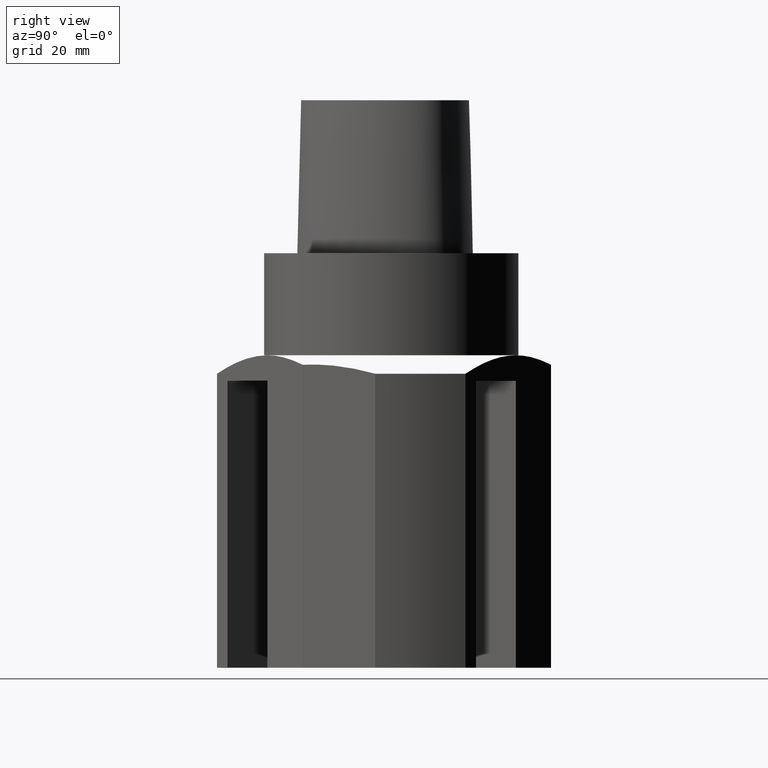
[diagram: clean part render]
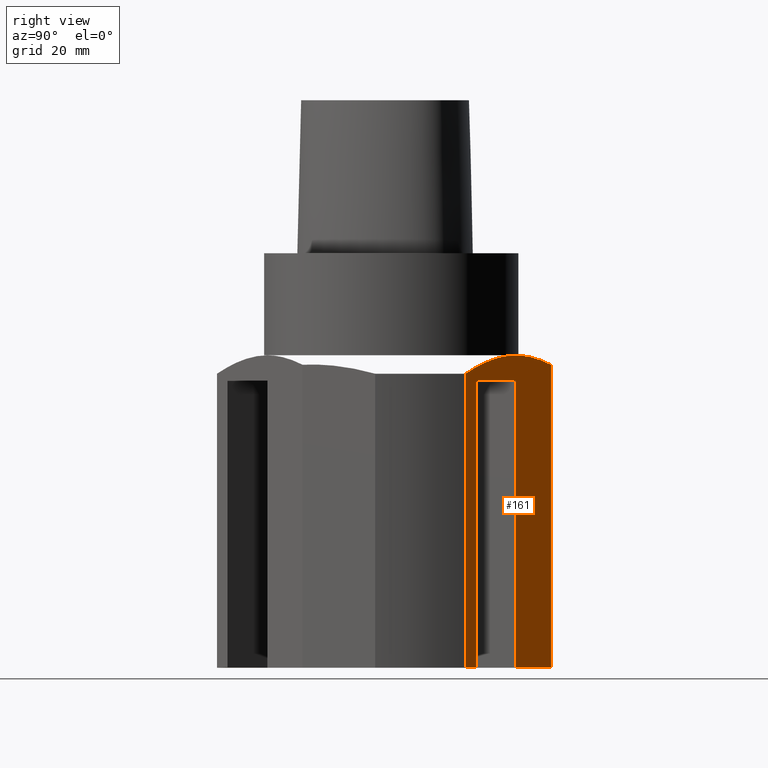
[diagram: same view with one face highlighted and labeled with its STEP entity id]
A machine part, right view. The second image highlights one B-rep face of the part: STEP entity #161.
In plain terms, the highlighted planar face has unit normal (-0.5, -0.866, 0).
Its self-contained STEP definition (entity closure, byte-faithful):
#135=EDGE_CURVE('240[2]',#393,#394,#395,.T.);
#154=EDGE_CURVE('240[2]',#425,#426,#427,.T.);
#161=ADVANCED_FACE('240[2]',(#436),#437,.F.);
#181=EDGE_CURVE('240[2]',#465,#394,#466,.T.);
#241=EDGE_CURVE('240[2]',#465,#549,#550,.T.);
#256=EDGE_CURVE('240[2]',#426,#393,#567,.T.);
#261=EDGE_CURVE('240[2]',#425,#397,#573,.F.);
#310=EDGE_CURVE('240[2]',#546,#475,#633,.T.);
#321=EDGE_CURVE('240[2]',#475,#549,#646,.T.);
#339=EDGE_CURVE('240[2]',#397,#546,#666,.F.);
#393=VERTEX_POINT('',#733);
#394=VERTEX_POINT('',#734);
#395=LINE('',#735,#736);
#397=VERTEX_POINT('',#739);
#425=VERTEX_POINT('',#1159);
#426=VERTEX_POINT('',#1160);
#427=LINE('',#1161,#1162);
#436=FACE_OUTER_BOUND('',#1176,.T.);
#437=PLANE('',#1177);
#465=VERTEX_POINT('',#1216);
#466=LINE('',#1217,#1218);
#475=VERTEX_POINT('',#1588);
#546=VERTEX_POINT('',#1746);
#549=VERTEX_POINT('',#1750);
#550=LINE('',#1751,#1752);
#567=LINE('',#1875,#1876);
#573=LINE('',#1884,#1885);
#633=(B_SPLINE_CURVE(3,(#2010,#2011,#2012,#2013,#2014,#2015,#2016),.UNSPECIFIED.,.F.,.F.)B_SPLINE_CURVE_WITH_KNOTS((4,3,4),(0.0489495126126442,4.69457305665706,32.4170278170835),.UNSPECIFIED.)RATIONAL_B_SPLINE_CURVE((1.0,1.0,1.0,1.0,1.05336861930955,1.08005292896432,1.08005292896432))BOUNDED_CURVE()REPRESENTATION_ITEM('')GEOMETRIC_REPRESENTATION_ITEM()CURVE());
#646=(B_SPLINE_CURVE(3,(#2043,#2044,#2045,#2046,#2047,#2048,#2049),.UNSPECIFIED.,.F.,.F.)B_SPLINE_CURVE_WITH_KNOTS((4,3,4),(32.4170278170835,50.7051788190685,56.2257190793164),.UNSPECIFIED.)RATIONAL_B_SPLINE_CURVE((1.0,1.0,0.989248051790694,0.967744155372081,0.967744155372081,0.967744155372081,0.967744155372081))BOUNDED_CURVE()REPRESENTATION_ITEM('')GEOMETRIC_REPRESENTATION_ITEM()CURVE());
#666=LINE('',#2088,#2089);
#733=CARTESIAN_POINT('',(22.4999999112944,38.9711430166565,-40.0000025629997));
#734=CARTESIAN_POINT('',(22.4999999112944,38.9711430166565,-130.0));
#735=CARTESIAN_POINT('',(22.4999999112944,38.9711430166565,-310.0));
#736=VECTOR('',#2191,1.0);
#739=CARTESIAN_POINT('',(49.8861277533006,23.1597551321542,-130.0));
#1159=CARTESIAN_POINT('',(44.1506342710993,26.4711437548649,-130.0));
#1160=CARTESIAN_POINT('',(44.1506342710993,26.4711437548649,-40.0000025629996));
#1161=CARTESIAN_POINT('',(44.1506342710993,26.4711437548649,-310.0));
#1162=VECTOR('',#2210,1.0);
#1176=EDGE_LOOP('',(#2214,#2215,#2216,#2217,#2218,#2219,#2220,#2221,#2222));
#1177=AXIS2_PLACEMENT_3D('',#2223,#2224,#2225);
#1216=CARTESIAN_POINT('',(3.3974587869272,49.9999999999992,-130.0));
#1217=CARTESIAN_POINT('',(30.0422595895877,34.6166174704703,-130.0));
#1218=VECTOR('',#2264,1.0);
#1588=CARTESIAN_POINT('',(22.4999994874374,38.9711432613704,-32.0000025629997));
#1746=CARTESIAN_POINT('',(49.8861277533006,23.1597551321543,-37.7735059470318));
#1750=CARTESIAN_POINT('',(3.39745878692721,49.9999999999992,-34.953319644109));
#1751=CARTESIAN_POINT('',(3.39745878692719,49.9999999999992,-310.0));
#1752=VECTOR('',#2334,1.0);
#1875=CARTESIAN_POINT('',(30.0260217096737,34.6259924145743,-40.0000025629997));
#1876=VECTOR('',#2364,1.0);
#1884=CARTESIAN_POINT('',(30.0422595895878,34.6166174704703,-130.0));
#1885=VECTOR('',#2373,1.0);
#2010=CARTESIAN_POINT('',(49.8861277533006,23.1597551321543,-37.7735059470318));
#2011=CARTESIAN_POINT('',(48.3946013699823,24.0208882694371,-37.2017943279969));
#2012=CARTESIAN_POINT('',(46.9035574909648,24.8817428327389,-36.6615845468431));
#2013=CARTESIAN_POINT('',(45.4183984255273,25.7391997974216,-36.159675245771));
#2014=CARTESIAN_POINT('',(37.0048293687454,30.5967760351902,-33.3163107449007));
#2015=CARTESIAN_POINT('',(29.5732327594606,34.8874102302997,-32.0000028008091));
#2016=CARTESIAN_POINT('',(22.4999994874374,38.9711432613705,-32.0000028008092));
#2043=CARTESIAN_POINT('',(22.4999994874374,38.9711432613704,-32.0000025629997));
#2044=CARTESIAN_POINT('',(17.8338774117083,41.6651300301982,-32.0000025629997));
#2045=CARTESIAN_POINT('',(13.0663249559937,44.4176776547438,-32.5647627194205));
#2046=CARTESIAN_POINT('',(8.03505423359074,47.3224830877278,-33.7319305405357));
#2047=CARTESIAN_POINT('',(6.4825452729115,48.2188245315815,-34.0920857778259));
#2048=CARTESIAN_POINT('',(4.9359508360921,49.1117512235783,-34.5018856756581));
#2049=CARTESIAN_POINT('',(3.39745878692721,49.9999999999992,-34.953319644109));
#2088=CARTESIAN_POINT('',(49.8861277533006,23.1597551321543,-310.0));
#2089=VECTOR('',#2482,1.0);
#2191=DIRECTION('',(-1.74394371508663E-016,-5.71305521775757E-017,-1.0));
#2210=DIRECTION('',(1.74394356763722E-016,5.7130560690571E-017,1.0));
#2214=ORIENTED_EDGE('',*,*,#154,.T.);
#2215=ORIENTED_EDGE('',*,*,#256,.T.);
#2216=ORIENTED_EDGE('',*,*,#135,.T.);
#2217=ORIENTED_EDGE('',*,*,#181,.F.);
#2218=ORIENTED_EDGE('',*,*,#241,.T.);
#2219=ORIENTED_EDGE('',*,*,#321,.F.);
#2220=ORIENTED_EDGE('',*,*,#310,.F.);
#2221=ORIENTED_EDGE('',*,*,#339,.F.);
#2222=ORIENTED_EDGE('',*,*,#261,.F.);
#2223=CARTESIAN_POINT('',(26.7267263281506,36.5308414433878,-310.0));
#2224=DIRECTION('',(-0.499999990580962,-0.866025409222523,1.36673693940398E-016));
#2225=DIRECTION('',(-0.866025409222523,0.499999990580962,0.0));
#2264=DIRECTION('',(0.866025409222523,-0.499999990580962,8.2035765346362E-018));
#2334=DIRECTION('',(6.12323399573672E-017,1.22464679914736E-016,1.0));
#2364=DIRECTION('',(-0.866025409222523,0.499999990580962,1.22464679248762E-016));
#2373=DIRECTION('',(-0.866025409222523,0.499999990580962,-8.20357653463602E-018));
#2482=DIRECTION('',(-6.12323399573677E-017,-1.22464679914735E-016,-1.0));